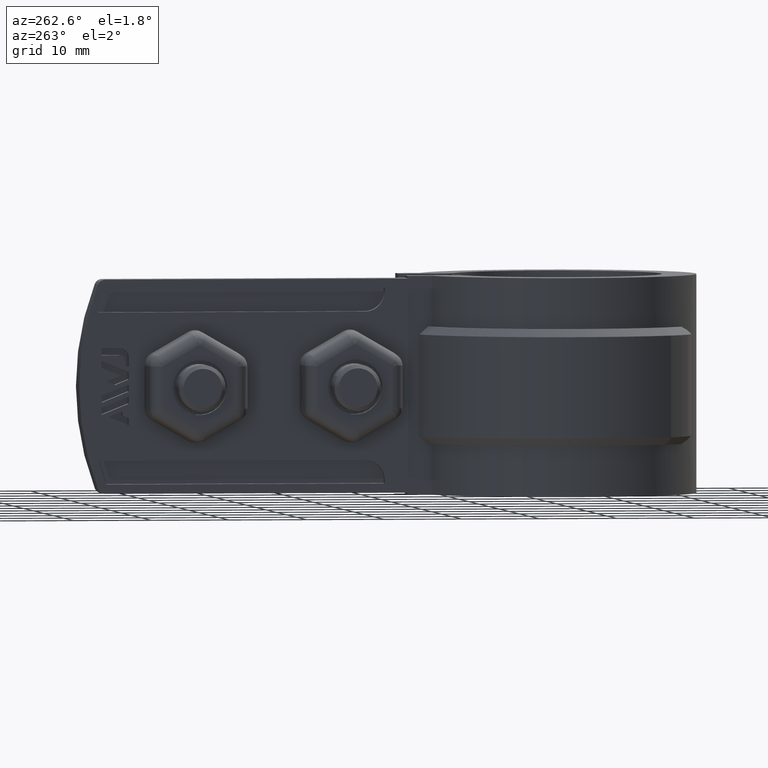
[diagram: clean part render]
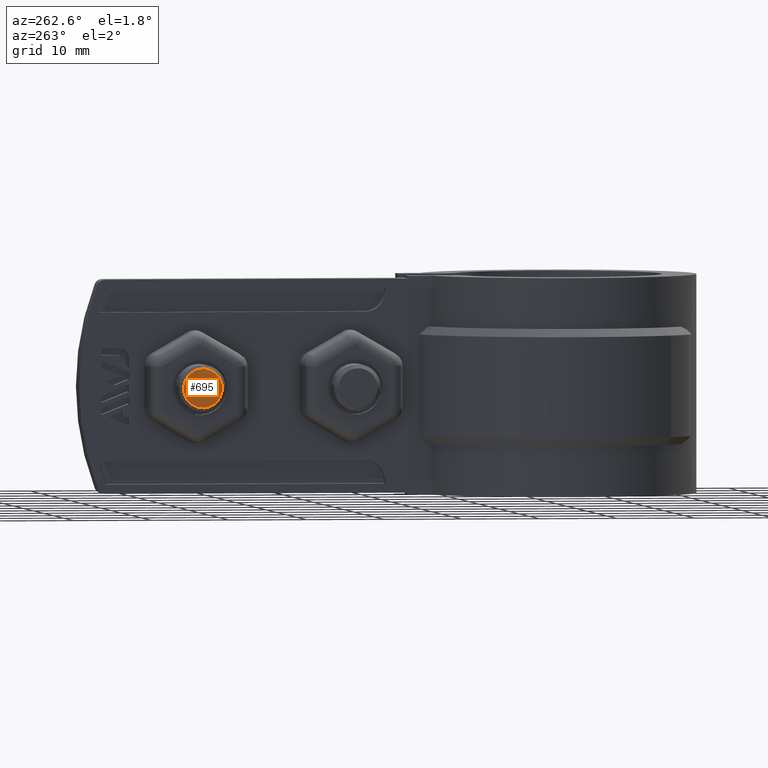
[diagram: same view with one face highlighted and labeled with its STEP entity id]
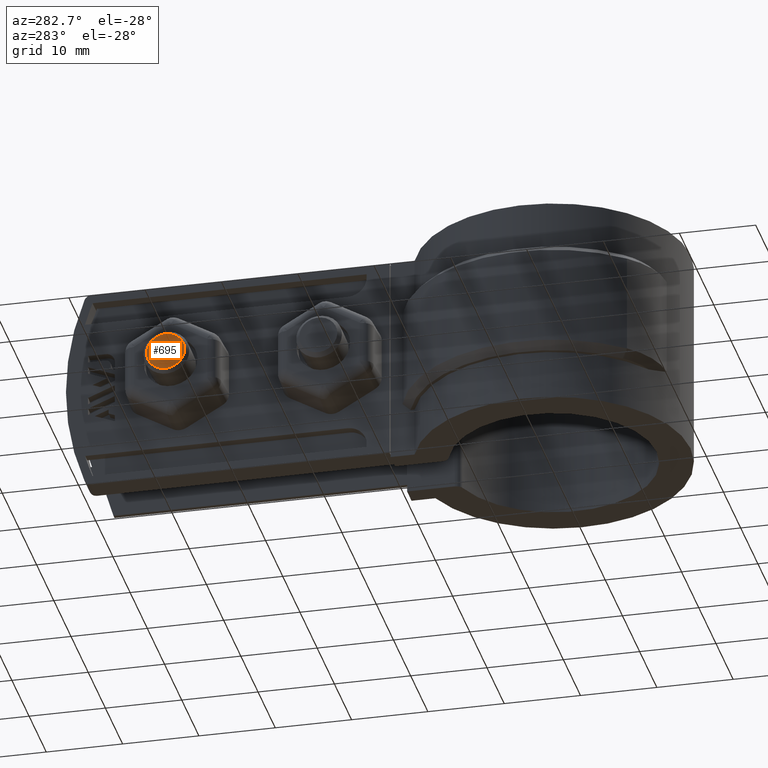
[diagram: same view with one face highlighted and labeled with its STEP entity id]
A machine part, auxiliary view. The second image highlights one B-rep face of the part: STEP entity #695.
A second angle (auxiliary view) of the same face is appended — the face is thin or edge-on in the first view.
In plain terms, the highlighted planar face has unit normal (1, 0, 0).
Its self-contained STEP definition (entity closure, byte-faithful):
#695 = ADVANCED_FACE( '', ( #1418 ), #1419, .F. );
#1418 = FACE_OUTER_BOUND( '', #2794, .T. );
#1419 = PLANE( '', #2795 );
#2794 = EDGE_LOOP( '', ( #6159 ) );
#2795 = AXIS2_PLACEMENT_3D( '', #6160, #6161, #6162 );
#6159 = ORIENTED_EDGE( '', *, *, #7102, .T. );
#6160 = CARTESIAN_POINT( '', ( -14.9000000000000, 47.4942845476287, -12.5000000000000 ) );
#6161 = DIRECTION( '', ( 1.00000000000000, 0.000000000000000, 0.000000000000000 ) );
#6162 = DIRECTION( '', ( 0.000000000000000, -0.866025403784439, -0.500000000000000 ) );
#7102 = EDGE_CURVE( '', #8610, #8610, #8611, .F. );
#8610 = VERTEX_POINT( '', #12153 );
#8611 = CIRCLE( '', #12154, 2.50000000000079 );
#12153 = CARTESIAN_POINT( '', ( -14.9000000000000, 45.3292210381669, -13.7500000000004 ) );
#12154 = AXIS2_PLACEMENT_3D( '', #13392, #13393, #13394 );
#13392 = CARTESIAN_POINT( '', ( -14.9000000000000, 47.4942845476287, -12.5000000000000 ) );
#13393 = DIRECTION( '', ( 1.00000000000000, 0.000000000000000, 0.000000000000000 ) );
#13394 = DIRECTION( '', ( 0.000000000000000, -0.866025403784439, -0.500000000000000 ) );